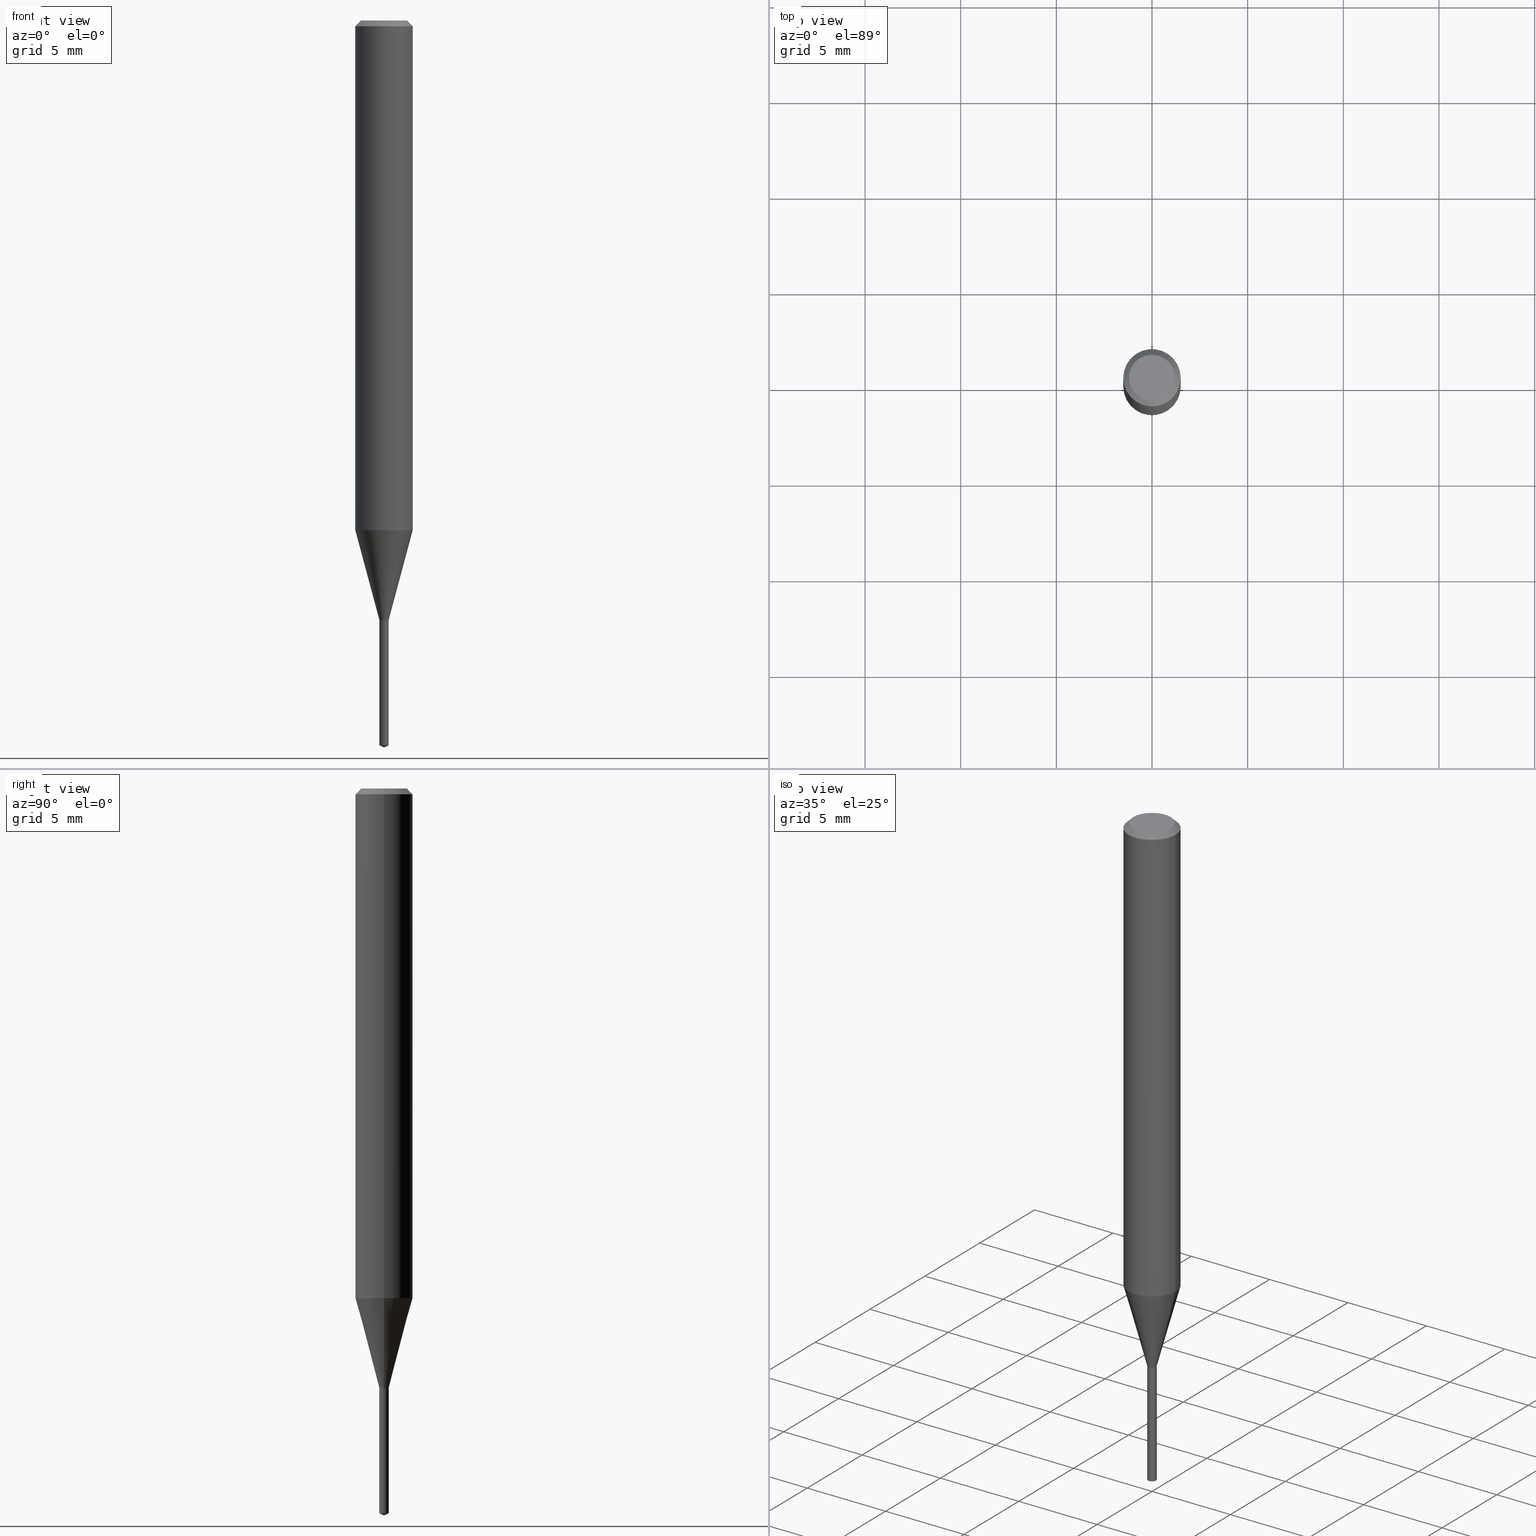
[diagram: canonical four-view strip — front | top / right | iso, engineering-drawing reading convention]
A machine part, canonical four-view strip (front | top / right | iso — engineering-drawing reading convention). The complete STEP part file that produces these views, byte-faithful:
ISO-10303-21;
HEADER;
FILE_DESCRIPTION (( 'STEP AP203' ),
    '1' );
FILE_NAME ('08090.STEP',
    '2024-04-24T11:10:30',
    ( '' ),
    ( '' ),
    'SwSTEP 2.0',
    'SolidWorks 2023',
    '' );
FILE_SCHEMA (( 'CONFIG_CONTROL_DESIGN' ));
ENDSEC;

DATA;
#1 = EDGE_CURVE ( 'NONE', #340, #40, #452, .T. ) ;
#2 = ORIENTED_EDGE ( 'NONE', *, *, #166, .F. ) ;
#3 = ORIENTED_EDGE ( 'NONE', *, *, #48, .T. ) ;
#4 = DIRECTION ( 'NONE',  ( 1.000000000000000000, 0.000000000000000000, 0.000000000000000000 ) ) ;
#5 = VECTOR ( 'NONE', #250, 39.37007874015748143 ) ;
#6 = ORIENTED_EDGE ( 'NONE', *, *, #1, .F. ) ;
#7 = AXIS2_PLACEMENT_3D ( 'NONE', #83, #339, #4 ) ;
#8 = APPROVAL_DATE_TIME ( #311, #226 ) ;
#9 = ORIENTED_EDGE ( 'NONE', *, *, #392, .T. ) ;
#10 = EDGE_CURVE ( 'NONE', #295, #371, #47, .T. ) ;
#11 = MECHANICAL_CONTEXT ( 'NONE', #399, 'mechanical' ) ;
#12 = DIRECTION ( 'NONE',  ( 0.2588190451025211281, 1.565188264969622954E-15, 0.9659258262890679791 ) ) ;
#13 = PERSON_AND_ORGANIZATION ( #348, #406 ) ;
#14 = ORIENTED_EDGE ( 'NONE', *, *, #10, .T. ) ;
#15 = CIRCLE ( 'NONE', #196, 0.05904999999999999832 ) ;
#16 = VECTOR ( 'NONE', #69, 39.37007874015748143 ) ;
#17 = UNCERTAINTY_MEASURE_WITH_UNIT (LENGTH_MEASURE( 1.000000000000000082E-05 ), #333, 'distance_accuracy_value', 'NONE');
#18 = EDGE_CURVE ( 'NONE', #229, #338, #51, .T. ) ;
#19 = DIRECTION ( 'NONE',  ( -2.445468806185136877E-29, 3.491481338843145188E-15, 1.000000000000000000 ) ) ;
#20 = COORDINATED_UNIVERSAL_TIME_OFFSET ( 5, 0, .BEHIND. ) ;
#21 = DIRECTION ( 'NONE',  ( -2.445468806185136597E-29, 3.491481338843145583E-15, 1.000000000000000000 ) ) ;
#22 = ORIENTED_EDGE ( 'NONE', *, *, #207, .T. ) ;
#23 = CARTESIAN_POINT ( 'NONE',  ( -0.009650000000000000591, 6.856737400084967214E-17, -4.746772362095984141E-31 ) ) ;
#24 = DIRECTION ( 'NONE',  ( -2.445468806185136597E-29, 3.491481338843145583E-15, 1.000000000000000000 ) ) ;
#25 =( GEOMETRIC_REPRESENTATION_CONTEXT ( 3 ) GLOBAL_UNCERTAINTY_ASSIGNED_CONTEXT ( ( #17 ) ) GLOBAL_UNIT_ASSIGNED_CONTEXT ( ( #333, #410, #219 ) ) REPRESENTATION_CONTEXT ( 'NONE', 'WORKASPACE' ) );
#26 = DIRECTION ( 'NONE',  ( -6.328713451373366223E-15, -0.9063077870366481603, 0.4226182617407031605 ) ) ;
#27 = CARTESIAN_POINT ( 'NONE',  ( 3.016241225548747360E-29, -4.306393083329135397E-15, -1.233400000000000052 ) ) ;
#28 = LINE ( 'NONE', #209, #265 ) ;
#29 = FACE_OUTER_BOUND ( 'NONE', #224, .T. ) ;
#30 = EDGE_CURVE ( 'NONE', #337, #201, #423, .T. ) ;
#31 = LINE ( 'NONE', #359, #468 ) ;
#32 = CONICAL_SURFACE ( 'NONE', #141, 0.009650000000000000591, 0.2617993877991498519 ) ;
#33 = CARTESIAN_POINT ( 'NONE',  ( 3.023333085086683703E-29, -4.316518379211780118E-15, -1.236299999999999955 ) ) ;
#34 = AXIS2_PLACEMENT_3D ( 'NONE', #228, #486, #372 ) ;
#35 = CARTESIAN_POINT ( 'NONE',  ( -0.009650000000000000591, -4.242015486934897790E-15, -1.233400000000000052 ) ) ;
#36 = EDGE_CURVE ( 'NONE', #44, #407, #390, .T. ) ;
#37 = CARTESIAN_POINT ( 'NONE',  ( 8.265746106709734507E-48, -1.180129479067563789E-33, -3.380025165646692144E-19 ) ) ;
#38 = ORIENTED_EDGE ( 'NONE', *, *, #58, .F. ) ;
#39 = DIRECTION ( 'NONE',  ( -2.445453492125453683E-29, 3.491503269448233447E-15, 1.000000000000000000 ) ) ;
#40 = VERTEX_POINT ( 'NONE', #352 ) ;
#41 = APPROVAL_PERSON_ORGANIZATION ( #195, #226, #303 ) ;
#42 = ORIENTED_EDGE ( 'NONE', *, *, #278, .T. ) ;
#43 = DIRECTION ( 'NONE',  ( -2.445468806185136597E-29, 3.491481338843145583E-15, 1.000000000000000000 ) ) ;
#44 = VERTEX_POINT ( 'NONE', #426 ) ;
#45 = ORIENTED_EDGE ( 'NONE', *, *, #459, .T. ) ;
#46 = CIRCLE ( 'NONE', #382, 0.009150000000000000147 ) ;
#47 = LINE ( 'NONE', #125, #327 ) ;
#48 = EDGE_CURVE ( 'NONE', #227, #44, #460, .T. ) ;
#49 = CONICAL_SURFACE ( 'NONE', #280, 0.05904999999999999832, 0.7853981633974452814 ) ;
#50 = PERSON_AND_ORGANIZATION_ROLE ( 'creator' ) ;
#51 = LINE ( 'NONE', #87, #290 ) ;
#52 = CC_DESIGN_PERSON_AND_ORGANIZATION_ASSIGNMENT ( #236, #313, ( #488 ) ) ;
#53 = DATE_TIME_ROLE ( 'creation_date' ) ;
#54 = DIRECTION ( 'NONE',  ( -2.445468806185136597E-29, 3.491481338843145583E-15, 1.000000000000000000 ) ) ;
#55 = ORIENTED_EDGE ( 'NONE', *, *, #123, .F. ) ;
#56 = CIRCLE ( 'NONE', #88, 0.05904999999999999832 ) ;
#57 = CIRCLE ( 'NONE', #161, 0.04724000000000000421 ) ;
#58 = EDGE_CURVE ( 'NONE', #338, #201, #56, .T. ) ;
#59 = FACE_OUTER_BOUND ( 'NONE', #380, .T. ) ;
#60 = DIRECTION ( 'NONE',  ( 1.000000000000000000, -6.982962677686232001E-15, 0.000000000000000000 ) ) ;
#61 = MANIFOLD_SOLID_BREP ( 'Body-Move/Copy2[2]', #72 ) ;
#62 = CARTESIAN_POINT ( 'NONE',  ( -0.05905000000000006771, 4.195754854663396409E-16, -2.904631170795525045E-30 ) ) ;
#63 = DIRECTION ( 'NONE',  ( 0.7071067811866191821, -2.468850131083007662E-15, 0.7071067811864758523 ) ) ;
#64 = FACE_OUTER_BOUND ( 'NONE', #192, .T. ) ;
#65 = AXIS2_PLACEMENT_3D ( 'NONE', #320, #471, #98 ) ;
#66 = DIRECTION ( 'NONE',  ( -2.445468806185136597E-29, 3.491481338843145583E-15, 1.000000000000000000 ) ) ;
#67 = DIRECTION ( 'NONE',  ( -6.982962677686265133E-15, -1.000000000000000000, 0.000000000000000000 ) ) ;
#68 = ADVANCED_FACE ( 'NONE', ( #465 ), #93, .T. ) ;
#69 = DIRECTION ( 'NONE',  ( -2.445468806185136877E-29, 3.491481338843145188E-15, 1.000000000000000000 ) ) ;
#70 = DIRECTION ( 'NONE',  ( -0.2588190451025211281, 5.211531920934547886E-15, 0.9659258262890679791 ) ) ;
#71 = DIRECTION ( 'NONE',  ( 1.000000000000000000, -6.982962677686287221E-15, 0.000000000000000000 ) ) ;
#72 = CLOSED_SHELL ( 'NONE', ( #270, #443, #476, #191, #86, #100, #107, #356, #363, #263, #431, #76 ) ) ;
#73 = DIRECTION ( 'NONE',  ( 1.000000000000000000, -6.982962677686237523E-15, 0.000000000000000000 ) ) ;
#74 = CARTESIAN_POINT ( 'NONE',  ( 3.023333085086683703E-29, -4.316518379211780118E-15, -1.236299999999999955 ) ) ;
#75 = ORIENTED_EDGE ( 'NONE', *, *, #48, .F. ) ;
#76 = ADVANCED_FACE ( 'NONE', ( #59 ), #487, .T. ) ;
#77 = CARTESIAN_POINT ( 'NONE',  ( -9.261903463803131862E-28, 1.322371477110797904E-13, 37.87397874015748300 ) ) ;
#78 = FACE_OUTER_BOUND ( 'NONE', #122, .T. ) ;
#79 = ORIENTED_EDGE ( 'NONE', *, *, #482, .F. ) ;
#80 = DIRECTION ( 'NONE',  ( -2.445453492125453683E-29, 3.491503269448233447E-15, 1.000000000000000000 ) ) ;
#81 = CIRCLE ( 'NONE', #454, 0.009650000000000000591 ) ;
#82 = EDGE_LOOP ( 'NONE', ( #152, #310, #450 ) ) ;
#83 = CARTESIAN_POINT ( 'NONE',  ( 0.000000000000000000, 0.000000000000000000, 0.000000000000000000 ) ) ;
#84 = ORIENTED_EDGE ( 'NONE', *, *, #10, .F. ) ;
#85 = APPLICATION_PROTOCOL_DEFINITION ( 'international standard', 'config_control_design', 1994, #117 ) ;
#86 = ADVANCED_FACE ( 'NONE', ( #430 ), #323, .T. ) ;
#87 = CARTESIAN_POINT ( 'NONE',  ( -0.05904999999999999832, 3.711095515056362547E-16, -0.01181000000000007044 ) ) ;
#88 = AXIS2_PLACEMENT_3D ( 'NONE', #163, #314, #312 ) ;
#89 = PRODUCT_RELATED_PRODUCT_CATEGORY ( 'detail', '', ( #305 ) ) ;
#90 = CONICAL_SURFACE ( 'NONE', #429, 84.42940631927382356, 1.134464013796313564 ) ;
#91 = CARTESIAN_POINT ( 'NONE',  ( 0.009650000000000000591, -4.373778673168807802E-15, -1.233400000000000052 ) ) ;
#92 = DATE_AND_TIME ( #273, #274 ) ;
#93 = CYLINDRICAL_SURFACE ( 'NONE', #212, 0.009650000000000000591 ) ;
#94 = VERTEX_POINT ( 'NONE', #106 ) ;
#95 = VERTEX_POINT ( 'NONE', #35 ) ;
#96 = AXIS2_PLACEMENT_3D ( 'NONE', #177, #21, #470 ) ;
#97 = LINE ( 'NONE', #142, #231 ) ;
#98 = DIRECTION ( 'NONE',  ( 1.000000000000000000, -6.982962677686237523E-15, 0.000000000000000000 ) ) ;
#99 = DIRECTION ( 'NONE',  ( -2.445468806185136597E-29, 3.491481338843145583E-15, 1.000000000000000000 ) ) ;
#100 = ADVANCED_FACE ( 'NONE', ( #326 ), #401, .T. ) ;
#101 = DIRECTION ( 'NONE',  ( -6.982962677686265133E-15, -1.000000000000000000, 0.000000000000000000 ) ) ;
#102 = CARTESIAN_POINT ( 'NONE',  ( 3.647657682222341556E-29, -5.207899621633818646E-15, -1.491600131098804072 ) ) ;
#103 = CIRCLE ( 'NONE', #128, 0.009650000000000000591 ) ;
#104 = APPROVAL_PERSON_ORGANIZATION ( #13, #360, #276 ) ;
#105 = CARTESIAN_POINT ( 'NONE',  ( 3.023333085086683703E-29, -4.316518379211780118E-15, -1.236299999999999955 ) ) ;
#106 = CARTESIAN_POINT ( 'NONE',  ( -0.009650000000000000591, -4.242015486934897790E-15, -1.235800000000000010 ) ) ;
#107 = ADVANCED_FACE ( 'NONE', ( #168 ), #405, .T. ) ;
#108 = CARTESIAN_POINT ( 'NONE',  ( 3.658642969568891371E-29, -5.223638041421501490E-15, -1.496099999999999985 ) ) ;
#109 = DIRECTION ( 'NONE',  ( -2.445468806185136597E-29, 3.491481338843145583E-15, 1.000000000000000000 ) ) ;
#110 = FACE_OUTER_BOUND ( 'NONE', #82, .T. ) ;
#111 = AXIS2_PLACEMENT_3D ( 'NONE', #283, #432, #364 ) ;
#112 = CYLINDRICAL_SURFACE ( 'NONE', #445, 0.05905000000000006771 ) ;
#113 = AXIS2_PLACEMENT_3D ( 'NONE', #77, #255, #183 ) ;
#114 = EDGE_LOOP ( 'NONE', ( #194, #126, #14, #446 ) ) ;
#115 = DIRECTION ( 'NONE',  ( -6.982962677686265133E-15, -1.000000000000000000, 0.000000000000000000 ) ) ;
#116 = ORIENTED_EDGE ( 'NONE', *, *, #18, .T. ) ;
#117 = APPLICATION_CONTEXT ( 'configuration controlled 3d designs of mechanical parts and assemblies' ) ;
#118 = EDGE_LOOP ( 'NONE', ( #304, #260, #116, #237 ) ) ;
#119 = DIRECTION ( 'NONE',  ( -2.445468806185136597E-29, 3.491481338843145583E-15, 1.000000000000000000 ) ) ;
#120 = VECTOR ( 'NONE', #420, 39.37007874015748143 ) ;
#121 = AXIS2_PLACEMENT_3D ( 'NONE', #433, #66, #361 ) ;
#122 = EDGE_LOOP ( 'NONE', ( #22, #42, #413, #307 ) ) ;
#123 = EDGE_CURVE ( 'NONE', #201, #338, #15, .T. ) ;
#124 = PERSON_AND_ORGANIZATION_ROLE ( 'design_supplier' ) ;
#125 = CARTESIAN_POINT ( 'NONE',  ( -6.738558983964223041E-17, -0.009650000000004314848, -1.236299999999999955 ) ) ;
#126 = ORIENTED_EDGE ( 'NONE', *, *, #129, .T. ) ;
#127 = DATE_AND_TIME ( #457, #358 ) ;
#128 = AXIS2_PLACEMENT_3D ( 'NONE', #467, #138, #101 ) ;
#129 = EDGE_CURVE ( 'NONE', #334, #295, #103, .T. ) ;
#130 = DIRECTION ( 'NONE',  ( -2.445453492125453683E-29, 3.491503269448233447E-15, 1.000000000000000000 ) ) ;
#131 = APPROVAL_STATUS ( 'not_yet_approved' ) ;
#132 = DIRECTION ( 'NONE',  ( 1.000000000000000000, -6.982962677686232001E-15, 0.000000000000000000 ) ) ;
#133 = ORIENTED_EDGE ( 'NONE', *, *, #282, .T. ) ;
#134 = DIRECTION ( 'NONE',  ( -0.7071067811866191821, 7.493145998870612907E-15, 0.7071067811864758523 ) ) ;
#135 = CIRCLE ( 'NONE', #302, 0.04724000000000000421 ) ;
#136 = EDGE_CURVE ( 'NONE', #409, #338, #248, .T. ) ;
#137 = DIRECTION ( 'NONE',  ( -2.445468806185136597E-29, 3.491481338843145583E-15, 1.000000000000000000 ) ) ;
#138 = DIRECTION ( 'NONE',  ( -2.445453492125453683E-29, 3.491503269448233447E-15, 1.000000000000000000 ) ) ;
#139 = DIRECTION ( 'NONE',  ( 1.000000000000000000, -6.982962677686232001E-15, 0.000000000000000000 ) ) ;
#140 = CARTESIAN_POINT ( 'NONE',  ( 3.022110350683592022E-29, -4.314772638542359403E-15, -1.235800000000000010 ) ) ;
#141 = AXIS2_PLACEMENT_3D ( 'NONE', #27, #173, #474 ) ;
#142 = CARTESIAN_POINT ( 'NONE',  ( 0.009150000000000000147, -4.380412487712609515E-15, -1.236299999999999955 ) ) ;
#143 = DIRECTION ( 'NONE',  ( -2.445468806185136597E-29, 3.491481338843145583E-15, 1.000000000000000000 ) ) ;
#144 = DIRECTION ( 'NONE',  ( 1.000000000000000000, -6.982962677686266711E-15, 4.876185090822587894E-29 ) ) ;
#145 = DIRECTION ( 'NONE',  ( -2.445453492125453683E-29, 3.491503269448233447E-15, 1.000000000000000000 ) ) ;
#146 = ORIENTED_EDGE ( 'NONE', *, *, #36, .T. ) ;
#147 = PRODUCT_DEFINITION_FORMATION_WITH_SPECIFIED_SOURCE ( 'ANY', '', #305, .NOT_KNOWN. ) ;
#148 = DIRECTION ( 'NONE',  ( -2.445468806185136597E-29, 3.491481338843145583E-15, 1.000000000000000000 ) ) ;
#149 = ORIENTED_EDGE ( 'NONE', *, *, #18, .F. ) ;
#150 = CC_DESIGN_PERSON_AND_ORGANIZATION_ASSIGNMENT ( #351, #50, ( #439 ) ) ;
#151 = EDGE_LOOP ( 'NONE', ( #133, #345, #55, #256 ) ) ;
#152 = ORIENTED_EDGE ( 'NONE', *, *, #369, .F. ) ;
#153 = AXIS2_PLACEMENT_3D ( 'NONE', #449, #330, #73 ) ;
#154 = ORIENTED_EDGE ( 'NONE', *, *, #278, .F. ) ;
#155 = PERSON_AND_ORGANIZATION ( #348, #406 ) ;
#156 = ORIENTED_EDGE ( 'NONE', *, *, #166, .T. ) ;
#157 = PERSON_AND_ORGANIZATION ( #348, #406 ) ;
#158 = ORIENTED_EDGE ( 'NONE', *, *, #329, .T. ) ;
#159 = APPROVAL_STATUS ( 'not_yet_approved' ) ;
#160 = AXIS2_PLACEMENT_3D ( 'NONE', #102, #288, #67 ) ;
#161 = AXIS2_PLACEMENT_3D ( 'NONE', #261, #148, #144 ) ;
#162 = ORIENTED_EDGE ( 'NONE', *, *, #419, .T. ) ;
#163 = CARTESIAN_POINT ( 'NONE',  ( 2.888098660104663766E-31, -4.123439461173779647E-17, -0.01181000000000007044 ) ) ;
#164 = LINE ( 'NONE', #172, #383 ) ;
#165 = ORIENTED_EDGE ( 'NONE', *, *, #136, .F. ) ;
#166 = EDGE_CURVE ( 'NONE', #94, #227, #395, .T. ) ;
#167 = DIRECTION ( 'NONE',  ( -6.982962677686265133E-15, -1.000000000000000000, 0.000000000000000000 ) ) ;
#168 = FACE_OUTER_BOUND ( 'NONE', #368, .T. ) ;
#169 = VECTOR ( 'NONE', #19, 39.37007874015748143 ) ;
#170 = VECTOR ( 'NONE', #258, 39.37007874015748143 ) ;
#171 = CC_DESIGN_PERSON_AND_ORGANIZATION_ASSIGNMENT ( #267, #124, ( #147 ) ) ;
#172 = CARTESIAN_POINT ( 'NONE',  ( 6.856737400087989537E-17, 0.009649999999995684599, -1.236299999999999955 ) ) ;
#173 = DIRECTION ( 'NONE',  ( -2.445468806185136597E-29, 3.491481338843145583E-15, 1.000000000000000000 ) ) ;
#174 = ADVANCED_FACE ( 'NONE', ( #64 ), #292, .F. ) ;
#175 = FACE_OUTER_BOUND ( 'NONE', #118, .T. ) ;
#176 = DIRECTION ( 'NONE',  ( 1.000000000000000000, -6.982962677686266711E-15, 0.000000000000000000 ) ) ;
#177 = CARTESIAN_POINT ( 'NONE',  ( 2.565386502198165089E-29, -3.662692027267218578E-15, -1.049036690106097236 ) ) ;
#178 = EDGE_CURVE ( 'NONE', #407, #201, #441, .T. ) ;
#179 = CARTESIAN_POINT ( 'NONE',  ( 4.132873053354867254E-48, -5.900647395337818946E-34, -1.690012582823346072E-19 ) ) ;
#180 = AXIS2_PLACEMENT_3D ( 'NONE', #281, #394, #398 ) ;
#181 = DIRECTION ( 'NONE',  ( -6.982962677686265133E-15, -1.000000000000000000, 0.000000000000000000 ) ) ;
#182 = DIRECTION ( 'NONE',  ( 1.000000000000000000, -6.982962677686265133E-15, 4.876176775795935232E-29 ) ) ;
#183 = DIRECTION ( 'NONE',  ( -6.982962677686267499E-15, -1.000000000000000000, 3.520397390770475169E-15 ) ) ;
#184 = ORIENTED_EDGE ( 'NONE', *, *, #185, .F. ) ;
#185 = EDGE_CURVE ( 'NONE', #95, #409, #31, .T. ) ;
#186 = LENGTH_MEASURE_WITH_UNIT ( LENGTH_MEASURE( 0.02539999999999999897 ), #408 );
#187 = ORIENTED_EDGE ( 'NONE', *, *, #482, .T. ) ;
#188 = VECTOR ( 'NONE', #26, 39.37007874015748854 ) ;
#189 = CARTESIAN_POINT ( 'NONE',  ( 0.05905000000000013016, -4.075035973384593498E-15, -1.049036690106097236 ) ) ;
#190 = EDGE_LOOP ( 'NONE', ( #79, #316, #354, #149 ) ) ;
#191 = ADVANCED_FACE ( 'NONE', ( #29 ), #32, .T. ) ;
#192 = EDGE_LOOP ( 'NONE', ( #411, #9 ) ) ;
#193 = PERSON_AND_ORGANIZATION_ROLE ( 'creator' ) ;
#194 = ORIENTED_EDGE ( 'NONE', *, *, #347, .F. ) ;
#195 = PERSON_AND_ORGANIZATION ( #348, #406 ) ;
#196 = AXIS2_PLACEMENT_3D ( 'NONE', #213, #220, #176 ) ;
#197 = AXIS2_PLACEMENT_3D ( 'NONE', #481, #490, #336 ) ;
#198 = CARTESIAN_POINT ( 'NONE',  ( 0.05904999999999999832, -4.463468013801466955E-16, -0.01181000000000007044 ) ) ;
#199 = COORDINATED_UNIVERSAL_TIME_OFFSET ( 5, 0, .BEHIND. ) ;
#200 = ORIENTED_EDGE ( 'NONE', *, *, #185, .T. ) ;
#201 = VERTEX_POINT ( 'NONE', #403 ) ;
#202 = PERSON_AND_ORGANIZATION ( #348, #406 ) ;
#203 = AXIS2_PLACEMENT_3D ( 'NONE', #355, #254, #251 ) ;
#204 = DESIGN_CONTEXT ( 'detailed design', #117, 'design' ) ;
#205 = CC_DESIGN_APPROVAL ( #360, ( #488 ) ) ;
#206 = ORIENTED_EDGE ( 'NONE', *, *, #178, .T. ) ;
#207 = EDGE_CURVE ( 'NONE', #40, #340, #46, .T. ) ;
#208 = ORIENTED_EDGE ( 'NONE', *, *, #1, .T. ) ;
#209 = CARTESIAN_POINT ( 'NONE',  ( -0.009150000000000000147, -4.251503718889731012E-15, -1.236299999999999955 ) ) ;
#210 = CARTESIAN_POINT ( 'NONE',  ( 0.05905000000000006771, -4.123439461173745257E-16, 2.879382386107503723E-30 ) ) ;
#211 = EDGE_CURVE ( 'NONE', #227, #94, #376, .T. ) ;
#212 = AXIS2_PLACEMENT_3D ( 'NONE', #246, #130, #243 ) ;
#213 = CARTESIAN_POINT ( 'NONE',  ( 2.888098660104663766E-31, -4.123439461173779647E-17, -0.01181000000000007044 ) ) ;
#214 = CC_DESIGN_APPROVAL ( #455, ( #147 ) ) ;
#215 = FACE_OUTER_BOUND ( 'NONE', #300, .T. ) ;
#216 = CARTESIAN_POINT ( 'NONE',  ( 3.016241225548747360E-29, -4.306393083329135397E-15, -1.233400000000000052 ) ) ;
#217 = CARTESIAN_POINT ( 'NONE',  ( 0.009650000000000000591, -4.382158228382031808E-15, -1.235800000000000010 ) ) ;
#218 = MANIFOLD_SOLID_BREP ( 'Body-Move/Copy2[1]', #230 ) ;
#219 =( NAMED_UNIT ( * ) SI_UNIT ( $, .STERADIAN. ) SOLID_ANGLE_UNIT ( ) );
#220 = DIRECTION ( 'NONE',  ( -2.445468806185136597E-29, 3.491481338843145583E-15, 1.000000000000000000 ) ) ;
#221 = CONICAL_SURFACE ( 'NONE', #113, 84.42940631927382356, 1.134464013796313564 ) ;
#222 = CARTESIAN_POINT ( 'NONE',  ( -0.05905000000000013016, -3.243116541800878691E-15, -1.049036690106097236 ) ) ;
#223 = EDGE_CURVE ( 'NONE', #409, #407, #461, .T. ) ;
#224 = EDGE_LOOP ( 'NONE', ( #162, #200, #418, #235 ) ) ;
#225 = CARTESIAN_POINT ( 'NONE',  ( 0.000000000000000000, 0.000000000000000000, 0.000000000000000000 ) ) ;
#226 = APPROVAL ( #159, 'UNSPECIFIED' ) ;
#227 = VERTEX_POINT ( 'NONE', #217 ) ;
#228 = CARTESIAN_POINT ( 'NONE',  ( 2.888098660104663766E-31, -4.123439461173779647E-17, -0.01181000000000007044 ) ) ;
#229 = VERTEX_POINT ( 'NONE', #365 ) ;
#230 = CLOSED_SHELL ( 'NONE', ( #68, #472, #435, #324, #174 ) ) ;
#231 = VECTOR ( 'NONE', #63, 39.37007874015748143 ) ;
#232 = APPLICATION_PROTOCOL_DEFINITION ( 'international standard', 'config_control_design', 1994, #399 ) ;
#233 = ORIENTED_EDGE ( 'NONE', *, *, #244, .F. ) ;
#234 = CC_DESIGN_DATE_AND_TIME_ASSIGNMENT ( #92, #346, ( #488 ) ) ;
#235 = ORIENTED_EDGE ( 'NONE', *, *, #36, .F. ) ;
#236 = PERSON_AND_ORGANIZATION ( #348, #406 ) ;
#237 = ORIENTED_EDGE ( 'NONE', *, *, #58, .T. ) ;
#238 = CALENDAR_DATE ( 2024, 24, 4 ) ;
#239 = CC_DESIGN_APPROVAL ( #226, ( #439 ) ) ;
#240 = CIRCLE ( 'NONE', #96, 0.05905000000000013016 ) ;
#241 = ORIENTED_EDGE ( 'NONE', *, *, #211, .T. ) ;
#242 = APPROVAL_ROLE ( '' ) ;
#243 = DIRECTION ( 'NONE',  ( -6.982962677686265133E-15, -1.000000000000000000, 0.000000000000000000 ) ) ;
#244 = EDGE_CURVE ( 'NONE', #295, #334, #373, .T. ) ;
#245 = DIRECTION ( 'NONE',  ( -2.445468806185136597E-29, 3.491481338843145583E-15, 1.000000000000000000 ) ) ;
#246 = CARTESIAN_POINT ( 'NONE',  ( 3.023333085086683703E-29, -4.316518379211780118E-15, -1.236299999999999955 ) ) ;
#247 = DIRECTION ( 'NONE',  ( -2.445453492125453683E-29, 3.491503269448233447E-15, 1.000000000000000000 ) ) ;
#248 = LINE ( 'NONE', #62, #389 ) ;
#249 = CYLINDRICAL_SURFACE ( 'NONE', #289, 0.009650000000000000591 ) ;
#250 = DIRECTION ( 'NONE',  ( -2.445468806185136877E-29, 3.491481338843145188E-15, 1.000000000000000000 ) ) ;
#251 = DIRECTION ( 'NONE',  ( 1.000000000000000000, -6.982962677686265133E-15, 0.000000000000000000 ) ) ;
#252 = AXIS2_PLACEMENT_3D ( 'NONE', #33, #145, #181 ) ;
#253 = CARTESIAN_POINT ( 'NONE',  ( 6.856737400088613230E-17, 0.009649999999994794686, -1.491600131098804072 ) ) ;
#254 = DIRECTION ( 'NONE',  ( -2.445468806185136597E-29, 3.491481338843145583E-15, 1.000000000000000000 ) ) ;
#255 = DIRECTION ( 'NONE',  ( -2.445453492125453683E-29, 3.491503269448233447E-15, 1.000000000000000000 ) ) ;
#256 = ORIENTED_EDGE ( 'NONE', *, *, #178, .F. ) ;
#257 = AXIS2_PLACEMENT_3D ( 'NONE', #74, #99, #60 ) ;
#258 = DIRECTION ( 'NONE',  ( 6.439704144417022464E-15, 0.9063077870366512689, 0.4226182617406968323 ) ) ;
#259 = CC_DESIGN_PERSON_AND_ORGANIZATION_ASSIGNMENT ( #202, #422, ( #305 ) ) ;
#260 = ORIENTED_EDGE ( 'NONE', *, *, #459, .F. ) ;
#261 = CARTESIAN_POINT ( 'NONE',  ( 8.265746106709734507E-48, -1.180129479067563789E-33, -3.380025165646692144E-19 ) ) ;
#262 = EDGE_LOOP ( 'NONE', ( #458, #156, #3, #456 ) ) ;
#263 = ADVANCED_FACE ( 'NONE', ( #215 ), #438, .F. ) ;
#264 = ORIENTED_EDGE ( 'NONE', *, *, #308, .T. ) ;
#265 = VECTOR ( 'NONE', #134, 39.37007874015748143 ) ;
#266 = ORIENTED_EDGE ( 'NONE', *, *, #223, .F. ) ;
#267 = PERSON_AND_ORGANIZATION ( #348, #406 ) ;
#268 = ORIENTED_EDGE ( 'NONE', *, *, #223, .T. ) ;
#269 = DIMENSIONAL_EXPONENTS ( 1.000000000000000000, 0.000000000000000000, 0.000000000000000000, 0.000000000000000000, 0.000000000000000000, 0.000000000000000000, 0.000000000000000000 ) ;
#270 = ADVANCED_FACE ( 'NONE', ( #78 ), #421, .T. ) ;
#271 = DIRECTION ( 'NONE',  ( -2.445453492125453683E-29, 3.491503269448233447E-15, 1.000000000000000000 ) ) ;
#272 = AXIS2_PLACEMENT_3D ( 'NONE', #387, #54, #132 ) ;
#273 = CALENDAR_DATE ( 2024, 24, 4 ) ;
#274 = LOCAL_TIME ( 7, 10, 30.00000000000000000, #309 ) ;
#275 = CARTESIAN_POINT ( 'NONE',  ( 0.009650000000000000591, -6.738558983967246597E-17, 4.705510588643078047E-31 ) ) ;
#276 = APPROVAL_ROLE ( '' ) ;
#277 = VERTEX_POINT ( 'NONE', #325 ) ;
#278 = EDGE_CURVE ( 'NONE', #340, #94, #28, .T. ) ;
#279 = ORIENTED_EDGE ( 'NONE', *, *, #419, .F. ) ;
#280 = AXIS2_PLACEMENT_3D ( 'NONE', #287, #436, #400 ) ;
#281 = CARTESIAN_POINT ( 'NONE',  ( 3.023333085086683703E-29, -4.316518379211780118E-15, -1.236299999999999955 ) ) ;
#282 = EDGE_CURVE ( 'NONE', #407, #409, #240, .T. ) ;
#283 = CARTESIAN_POINT ( 'NONE',  ( 0.000000000000000000, 0.000000000000000000, 0.000000000000000000 ) ) ;
#284 = CARTESIAN_POINT ( 'NONE',  ( -6.738558983963599348E-17, -0.009650000000005208231, -1.491600131098804072 ) ) ;
#285 = CC_DESIGN_PERSON_AND_ORGANIZATION_ASSIGNMENT ( #157, #193, ( #147 ) ) ;
#286 = CARTESIAN_POINT ( 'NONE',  ( 3.022110350683592022E-29, -4.314772638542359403E-15, -1.235800000000000010 ) ) ;
#287 = CARTESIAN_POINT ( 'NONE',  ( 2.888098660104663766E-31, -4.123439461173779647E-17, -0.01181000000000007044 ) ) ;
#288 = DIRECTION ( 'NONE',  ( -2.445453492125453683E-29, 3.491503269448233447E-15, 1.000000000000000000 ) ) ;
#289 = AXIS2_PLACEMENT_3D ( 'NONE', #105, #396, #167 ) ;
#290 = VECTOR ( 'NONE', #381, 39.37007874015748143 ) ;
#291 = CARTESIAN_POINT ( 'NONE',  ( 0.04724000000000000421, -3.852183633974369345E-16, -3.380025165621689721E-19 ) ) ;
#292 = PLANE ( 'NONE',  #180 ) ;
#293 = FACE_OUTER_BOUND ( 'NONE', #190, .T. ) ;
#294 = FACE_OUTER_BOUND ( 'NONE', #151, .T. ) ;
#295 = VERTEX_POINT ( 'NONE', #284 ) ;
#296 = CARTESIAN_POINT ( 'NONE',  ( 3.023333085086683703E-29, -4.316518379211780118E-15, -1.236299999999999955 ) ) ;
#297 = DIRECTION ( 'NONE',  ( -1.000000000000000000, 6.982962677686265922E-15, -4.876176775795935793E-29 ) ) ;
#298 = ORIENTED_EDGE ( 'NONE', *, *, #347, .T. ) ;
#299 = FACE_OUTER_BOUND ( 'NONE', #464, .T. ) ;
#300 = EDGE_LOOP ( 'NONE', ( #45, #187 ) ) ;
#301 = VECTOR ( 'NONE', #12, 39.37007874015748854 ) ;
#302 = AXIS2_PLACEMENT_3D ( 'NONE', #37, #119, #447 ) ;
#303 = APPROVAL_ROLE ( '' ) ;
#304 = ORIENTED_EDGE ( 'NONE', *, *, #30, .F. ) ;
#305 = PRODUCT ( '08090', '08090', '', ( #11 ) ) ;
#306 = COORDINATED_UNIVERSAL_TIME_OFFSET ( 5, 0, .BEHIND. ) ;
#307 = ORIENTED_EDGE ( 'NONE', *, *, #341, .F. ) ;
#308 = EDGE_CURVE ( 'NONE', #94, #95, #317, .T. ) ;
#309 = COORDINATED_UNIVERSAL_TIME_OFFSET ( 5, 0, .BEHIND. ) ;
#310 = ORIENTED_EDGE ( 'NONE', *, *, #344, .T. ) ;
#311 = DATE_AND_TIME ( #238, #375 ) ;
#312 = DIRECTION ( 'NONE',  ( 1.000000000000000000, -6.982962677686266711E-15, 0.000000000000000000 ) ) ;
#313 = PERSON_AND_ORGANIZATION_ROLE ( 'classification_officer' ) ;
#314 = DIRECTION ( 'NONE',  ( -2.445468806185136597E-29, 3.491481338843145583E-15, 1.000000000000000000 ) ) ;
#315 = LINE ( 'NONE', #444, #170 ) ;
#316 = ORIENTED_EDGE ( 'NONE', *, *, #30, .T. ) ;
#317 = LINE ( 'NONE', #23, #16 ) ;
#318 = AXIS2_PLACEMENT_3D ( 'NONE', #286, #393, #71 ) ;
#319 = CIRCLE ( 'NONE', #252, 0.009650000000000000591 ) ;
#320 = CARTESIAN_POINT ( 'NONE',  ( 3.016241225548747360E-29, -4.306393083329135397E-15, -1.233400000000000052 ) ) ;
#321 = CALENDAR_DATE ( 2024, 24, 4 ) ;
#322 = FACE_OUTER_BOUND ( 'NONE', #388, .T. ) ;
#323 = CYLINDRICAL_SURFACE ( 'NONE', #111, 0.009650000000000000591 ) ;
#324 = ADVANCED_FACE ( 'NONE', ( #475 ), #249, .T. ) ;
#325 = CARTESIAN_POINT ( 'NONE',  ( 6.856737400088616928E-17, 0.009649999999995684599, -1.236299999999999955 ) ) ;
#326 = FACE_OUTER_BOUND ( 'NONE', #262, .T. ) ;
#327 = VECTOR ( 'NONE', #271, 39.37007874015748143 ) ;
#328 = DIRECTION ( 'NONE',  ( 2.438088387897960049E-29, -3.491481338843145188E-15, -1.000000000000000000 ) ) ;
#329 = EDGE_CURVE ( 'NONE', #95, #44, #397, .T. ) ;
#330 = DIRECTION ( 'NONE',  ( -2.445468806185136597E-29, 3.491481338843145583E-15, 1.000000000000000000 ) ) ;
#331 = APPROVAL_DATE_TIME ( #353, #360 ) ;
#332 = ORIENTED_EDGE ( 'NONE', *, *, #207, .F. ) ;
#333 =( CONVERSION_BASED_UNIT ( 'INCH', #186 ) LENGTH_UNIT ( ) NAMED_UNIT ( #269 ) );
#334 = VERTEX_POINT ( 'NONE', #253 ) ;
#335 = CONICAL_SURFACE ( 'NONE', #34, 0.05904999999999999832, 0.7853981633974452814 ) ;
#336 = DIRECTION ( 'NONE',  ( 1.000000000000000000, -6.982962677686265922E-15, 4.876176775795935793E-29 ) ) ;
#337 = VERTEX_POINT ( 'NONE', #291 ) ;
#338 = VERTEX_POINT ( 'NONE', #440 ) ;
#339 = DIRECTION ( 'NONE',  ( 0.000000000000000000, 0.000000000000000000, 1.000000000000000000 ) ) ;
#340 = VERTEX_POINT ( 'NONE', #478 ) ;
#341 = EDGE_CURVE ( 'NONE', #40, #227, #97, .T. ) ;
#342 = AXIS2_PLACEMENT_3D ( 'NONE', #349, #245, #385 ) ;
#343 = EDGE_LOOP ( 'NONE', ( #332, #6 ) ) ;
#344 = EDGE_CURVE ( 'NONE', #377, #295, #391, .T. ) ;
#345 = ORIENTED_EDGE ( 'NONE', *, *, #136, .T. ) ;
#346 = DATE_TIME_ROLE ( 'classification_date' ) ;
#347 = EDGE_CURVE ( 'NONE', #334, #277, #164, .T. ) ;
#348 = PERSON ( 'UNSPECIFIED', 'UNSPECIFIED', 'UNSPECIFIED', ('UNSPECIFIED'), ('UNSPECIFIED'), ('UNSPECIFIED') ) ;
#349 = CARTESIAN_POINT ( 'NONE',  ( 3.023333085086683703E-29, -4.316518379211780118E-15, -1.236299999999999955 ) ) ;
#350 = AXIS2_PLACEMENT_3D ( 'NONE', #179, #328, #297 ) ;
#351 = PERSON_AND_ORGANIZATION ( #348, #406 ) ;
#352 = CARTESIAN_POINT ( 'NONE',  ( 0.009150000000000000147, -4.380412487712609515E-15, -1.236299999999999955 ) ) ;
#353 = DATE_AND_TIME ( #321, #437 ) ;
#354 = ORIENTED_EDGE ( 'NONE', *, *, #123, .T. ) ;
#355 = CARTESIAN_POINT ( 'NONE',  ( 2.565386502198165089E-29, -3.662692027267218578E-15, -1.049036690106097236 ) ) ;
#356 = ADVANCED_FACE ( 'NONE', ( #322 ), #473, .T. ) ;
#357 = DIRECTION ( 'NONE',  ( 1.000000000000000000, -6.982962677686237523E-15, 0.000000000000000000 ) ) ;
#358 = LOCAL_TIME ( 7, 10, 30.00000000000000000, #306 ) ;
#359 = CARTESIAN_POINT ( 'NONE',  ( -0.009650000000000000591, -4.237825709328286181E-15, -1.233400000000000052 ) ) ;
#360 = APPROVAL ( #463, 'UNSPECIFIED' ) ;
#361 = DIRECTION ( 'NONE',  ( 1.000000000000000000, -6.982962677686266711E-15, 4.876176775795936353E-29 ) ) ;
#362 = DIRECTION ( 'NONE',  ( -2.445468806185136877E-29, 3.491481338843145188E-15, 1.000000000000000000 ) ) ;
#363 = ADVANCED_FACE ( 'NONE', ( #175 ), #49, .T. ) ;
#364 = DIRECTION ( 'NONE',  ( 1.000000000000000000, -6.982962677686265133E-15, 4.876176775795935232E-29 ) ) ;
#365 = CARTESIAN_POINT ( 'NONE',  ( -0.04724000000000000421, 3.504923541997677355E-16, -3.380025165670481712E-19 ) ) ;
#366 = CIRCLE ( 'NONE', #153, 0.009650000000000000591 ) ;
#367 = CARTESIAN_POINT ( 'NONE',  ( -9.261903463803131862E-28, 1.322371477110797904E-13, 37.87397874015748300 ) ) ;
#368 = EDGE_LOOP ( 'NONE', ( #184, #158, #146, #266 ) ) ;
#369 = EDGE_CURVE ( 'NONE', #377, #334, #315, .T. ) ;
#370 = CARTESIAN_POINT ( 'NONE',  ( -6.738558983964223041E-17, -0.009650000000004314848, -1.236299999999999955 ) ) ;
#371 = VERTEX_POINT ( 'NONE', #370 ) ;
#372 = DIRECTION ( 'NONE',  ( -1.000000000000000000, 6.982962677686266711E-15, 0.000000000000000000 ) ) ;
#373 = CIRCLE ( 'NONE', #160, 0.009650000000000000591 ) ;
#374 = EDGE_LOOP ( 'NONE', ( #241, #264, #279, #75 ) ) ;
#375 = LOCAL_TIME ( 7, 10, 30.00000000000000000, #415 ) ;
#376 = CIRCLE ( 'NONE', #412, 0.009650000000000000591 ) ;
#377 = VERTEX_POINT ( 'NONE', #402 ) ;
#378 = DATE_AND_TIME ( #386, #462 ) ;
#379 = ADVANCED_BREP_SHAPE_REPRESENTATION ( '08090', ( #218, #61, #7 ), #25 ) ;
#380 = EDGE_LOOP ( 'NONE', ( #154, #208, #425, #2 ) ) ;
#381 = DIRECTION ( 'NONE',  ( -0.7071067811865453523, 2.468850131082234184E-15, -0.7071067811865496822 ) ) ;
#382 = AXIS2_PLACEMENT_3D ( 'NONE', #477, #143, #139 ) ;
#383 = VECTOR ( 'NONE', #247, 39.37007874015748143 ) ;
#384 = APPROVAL_DATE_TIME ( #127, #455 ) ;
#385 = DIRECTION ( 'NONE',  ( 1.000000000000000000, -6.982962677686232001E-15, 0.000000000000000000 ) ) ;
#386 = CALENDAR_DATE ( 2024, 24, 4 ) ;
#387 = CARTESIAN_POINT ( 'NONE',  ( 3.023333085086683703E-29, -4.316518379211780118E-15, -1.236299999999999955 ) ) ;
#388 = EDGE_LOOP ( 'NONE', ( #165, #268, #206, #38 ) ) ;
#389 = VECTOR ( 'NONE', #362, 39.37007874015748143 ) ;
#390 = LINE ( 'NONE', #91, #301 ) ;
#391 = LINE ( 'NONE', #108, #188 ) ;
#392 = EDGE_CURVE ( 'NONE', #277, #371, #319, .T. ) ;
#393 = DIRECTION ( 'NONE',  ( -2.445468806185136597E-29, 3.491481338843145583E-15, 1.000000000000000000 ) ) ;
#394 = DIRECTION ( 'NONE',  ( 2.445453492125453403E-29, -3.491503269448233447E-15, -1.000000000000000000 ) ) ;
#395 = CIRCLE ( 'NONE', #318, 0.009650000000000000591 ) ;
#396 = DIRECTION ( 'NONE',  ( -2.445453492125453683E-29, 3.491503269448233447E-15, 1.000000000000000000 ) ) ;
#397 = CIRCLE ( 'NONE', #469, 0.009650000000000000591 ) ;
#398 = DIRECTION ( 'NONE',  ( 6.982962677686265922E-15, 1.000000000000000000, -3.491503269448233447E-15 ) ) ;
#399 = APPLICATION_CONTEXT ( 'configuration controlled 3d designs of mechanical parts and assemblies' ) ;
#400 = DIRECTION ( 'NONE',  ( -1.000000000000000000, 6.982962677686266711E-15, 0.000000000000000000 ) ) ;
#401 = CYLINDRICAL_SURFACE ( 'NONE', #427, 0.009650000000000000591 ) ;
#402 = CARTESIAN_POINT ( 'NONE',  ( 3.658642969568890811E-29, -5.223638041421501490E-15, -1.496099999999999985 ) ) ;
#403 = CARTESIAN_POINT ( 'NONE',  ( 0.05904999999999999832, -4.535783407291118600E-16, -0.01181000000000007044 ) ) ;
#404 = PLANE ( 'NONE',  #197 ) ;
#405 = CONICAL_SURFACE ( 'NONE', #65, 0.009650000000000000591, 0.2617993877991498519 ) ;
#406 = ORGANIZATION ( 'UNSPECIFIED', 'UNSPECIFIED', '' ) ;
#407 = VERTEX_POINT ( 'NONE', #189 ) ;
#408 =( LENGTH_UNIT ( ) NAMED_UNIT ( * ) SI_UNIT ( $, .METRE. ) );
#409 = VERTEX_POINT ( 'NONE', #222 ) ;
#410 =( NAMED_UNIT ( * ) PLANE_ANGLE_UNIT ( ) SI_UNIT ( $, .RADIAN. ) );
#411 = ORIENTED_EDGE ( 'NONE', *, *, #428, .T. ) ;
#412 = AXIS2_PLACEMENT_3D ( 'NONE', #140, #109, #434 ) ;
#413 = ORIENTED_EDGE ( 'NONE', *, *, #211, .F. ) ;
#414 = APPROVAL_PERSON_ORGANIZATION ( #155, #455, #242 ) ;
#415 = COORDINATED_UNIVERSAL_TIME_OFFSET ( 5, 0, .BEHIND. ) ;
#416 = ORIENTED_EDGE ( 'NONE', *, *, #428, .F. ) ;
#417 = SECURITY_CLASSIFICATION_LEVEL ( 'unclassified' ) ;
#418 = ORIENTED_EDGE ( 'NONE', *, *, #282, .F. ) ;
#419 = EDGE_CURVE ( 'NONE', #44, #95, #366, .T. ) ;
#420 = DIRECTION ( 'NONE',  ( 0.7071067811865453523, -7.319954787623248157E-15, -0.7071067811865496822 ) ) ;
#421 = CONICAL_SURFACE ( 'NONE', #257, 0.009150000000000000147, 0.7853981633975496424 ) ;
#422 = PERSON_AND_ORGANIZATION_ROLE ( 'design_owner' ) ;
#423 = LINE ( 'NONE', #198, #120 ) ;
#424 = PRODUCT_DEFINITION_SHAPE ( 'NONE', 'NONE',  #439 ) ;
#425 = ORIENTED_EDGE ( 'NONE', *, *, #341, .T. ) ;
#426 = CARTESIAN_POINT ( 'NONE',  ( 0.009650000000000000591, -4.373778673168807802E-15, -1.233400000000000052 ) ) ;
#427 = AXIS2_PLACEMENT_3D ( 'NONE', #480, #24, #182 ) ;
#428 = EDGE_CURVE ( 'NONE', #371, #277, #81, .T. ) ;
#429 = AXIS2_PLACEMENT_3D ( 'NONE', #367, #80, #483 ) ;
#430 = FACE_OUTER_BOUND ( 'NONE', #374, .T. ) ;
#431 = ADVANCED_FACE ( 'NONE', ( #442 ), #404, .F. ) ;
#432 = DIRECTION ( 'NONE',  ( -2.445468806185136597E-29, 3.491481338843145583E-15, 1.000000000000000000 ) ) ;
#433 = CARTESIAN_POINT ( 'NONE',  ( 0.000000000000000000, 0.000000000000000000, 0.000000000000000000 ) ) ;
#434 = DIRECTION ( 'NONE',  ( 1.000000000000000000, -6.982962677686287221E-15, 0.000000000000000000 ) ) ;
#435 = ADVANCED_FACE ( 'NONE', ( #110 ), #90, .T. ) ;
#436 = DIRECTION ( 'NONE',  ( 2.445468806185136597E-29, -3.491481338843145583E-15, -1.000000000000000000 ) ) ;
#437 = LOCAL_TIME ( 7, 10, 30.00000000000000000, #20 ) ;
#438 = PLANE ( 'NONE',  #350 ) ;
#439 = PRODUCT_DEFINITION ( 'UNKNOWN', '', #147, #204 ) ;
#440 = CARTESIAN_POINT ( 'NONE',  ( -0.05904999999999999832, -1.432387725473137872E-15, -0.01181000000000007044 ) ) ;
#441 = LINE ( 'NONE', #210, #5 ) ;
#442 = FACE_OUTER_BOUND ( 'NONE', #343, .T. ) ;
#443 = ADVANCED_FACE ( 'NONE', ( #293 ), #335, .T. ) ;
#444 = CARTESIAN_POINT ( 'NONE',  ( 3.658681167148986974E-29, -5.223583815807360950E-15, -1.496099999999999985 ) ) ;
#445 = AXIS2_PLACEMENT_3D ( 'NONE', #225, #43, #451 ) ;
#446 = ORIENTED_EDGE ( 'NONE', *, *, #392, .F. ) ;
#447 = DIRECTION ( 'NONE',  ( 1.000000000000000000, -6.982962677686266711E-15, 4.876185090822587894E-29 ) ) ;
#448 = EDGE_LOOP ( 'NONE', ( #484, #298, #416, #84 ) ) ;
#449 = CARTESIAN_POINT ( 'NONE',  ( 3.016241225548747360E-29, -4.306393083329135397E-15, -1.233400000000000052 ) ) ;
#450 = ORIENTED_EDGE ( 'NONE', *, *, #129, .F. ) ;
#451 = DIRECTION ( 'NONE',  ( 1.000000000000000000, -6.982962677686266711E-15, 4.876176775795936353E-29 ) ) ;
#452 = CIRCLE ( 'NONE', #342, 0.009150000000000000147 ) ;
#453 = ORIENTED_EDGE ( 'NONE', *, *, #344, .F. ) ;
#454 = AXIS2_PLACEMENT_3D ( 'NONE', #296, #39, #115 ) ;
#455 = APPROVAL ( #131, 'UNSPECIFIED' ) ;
#456 = ORIENTED_EDGE ( 'NONE', *, *, #329, .F. ) ;
#457 = CALENDAR_DATE ( 2024, 24, 4 ) ;
#458 = ORIENTED_EDGE ( 'NONE', *, *, #308, .F. ) ;
#459 = EDGE_CURVE ( 'NONE', #229, #337, #57, .T. ) ;
#460 = LINE ( 'NONE', #275, #169 ) ;
#461 = CIRCLE ( 'NONE', #203, 0.05905000000000013016 ) ;
#462 = LOCAL_TIME ( 7, 10, 30.00000000000000000, #199 ) ;
#463 = APPROVAL_STATUS ( 'not_yet_approved' ) ;
#464 = EDGE_LOOP ( 'NONE', ( #453, #489, #233 ) ) ;
#465 = FACE_OUTER_BOUND ( 'NONE', #448, .T. ) ;
#466 = SHAPE_DEFINITION_REPRESENTATION ( #424, #379 ) ;
#467 = CARTESIAN_POINT ( 'NONE',  ( 3.647657682222341556E-29, -5.207899621633818646E-15, -1.491600131098804072 ) ) ;
#468 = VECTOR ( 'NONE', #70, 39.37007874015748854 ) ;
#469 = AXIS2_PLACEMENT_3D ( 'NONE', #216, #137, #357 ) ;
#470 = DIRECTION ( 'NONE',  ( 1.000000000000000000, -6.982962677686265133E-15, 0.000000000000000000 ) ) ;
#471 = DIRECTION ( 'NONE',  ( -2.445468806185136597E-29, 3.491481338843145583E-15, 1.000000000000000000 ) ) ;
#472 = ADVANCED_FACE ( 'NONE', ( #299 ), #221, .T. ) ;
#473 = CYLINDRICAL_SURFACE ( 'NONE', #121, 0.05905000000000006771 ) ;
#474 = DIRECTION ( 'NONE',  ( 1.000000000000000000, -6.982962677686237523E-15, 0.000000000000000000 ) ) ;
#475 = FACE_OUTER_BOUND ( 'NONE', #114, .T. ) ;
#476 = ADVANCED_FACE ( 'NONE', ( #294 ), #112, .T. ) ;
#477 = CARTESIAN_POINT ( 'NONE',  ( 3.023333085086683703E-29, -4.316518379211780118E-15, -1.236299999999999955 ) ) ;
#478 = CARTESIAN_POINT ( 'NONE',  ( -0.009150000000000000147, -4.248854491715620599E-15, -1.236299999999999955 ) ) ;
#479 = CC_DESIGN_SECURITY_CLASSIFICATION ( #488, ( #147 ) ) ;
#480 = CARTESIAN_POINT ( 'NONE',  ( 0.000000000000000000, 0.000000000000000000, 0.000000000000000000 ) ) ;
#481 = CARTESIAN_POINT ( 'NONE',  ( 3.023333085086683703E-29, -4.316518379211780118E-15, -1.236299999999999955 ) ) ;
#482 = EDGE_CURVE ( 'NONE', #337, #229, #135, .T. ) ;
#483 = DIRECTION ( 'NONE',  ( -6.982962677686267499E-15, -1.000000000000000000, 3.520397390770475169E-15 ) ) ;
#484 = ORIENTED_EDGE ( 'NONE', *, *, #244, .T. ) ;
#485 = CC_DESIGN_DATE_AND_TIME_ASSIGNMENT ( #378, #53, ( #439 ) ) ;
#486 = DIRECTION ( 'NONE',  ( 2.445468806185136597E-29, -3.491481338843145583E-15, -1.000000000000000000 ) ) ;
#487 = CONICAL_SURFACE ( 'NONE', #272, 0.009150000000000000147, 0.7853981633975496424 ) ;
#488 = SECURITY_CLASSIFICATION ( '', '', #417 ) ;
#489 = ORIENTED_EDGE ( 'NONE', *, *, #369, .T. ) ;
#490 = DIRECTION ( 'NONE',  ( -2.438088387897960049E-29, 3.491481338843145188E-15, 1.000000000000000000 ) ) ;
ENDSEC;
END-ISO-10303-21;
